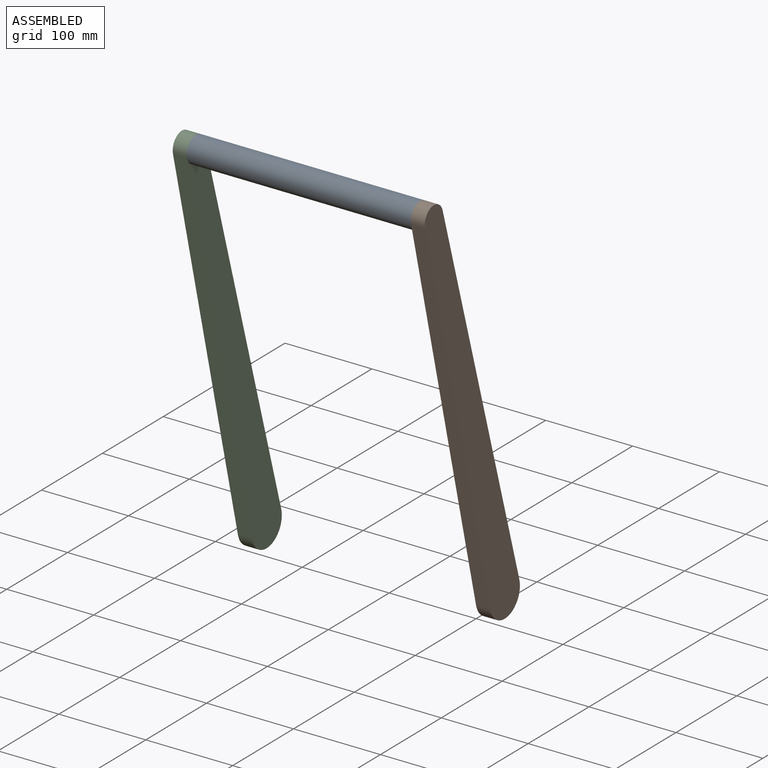
[diagram: assembled view]
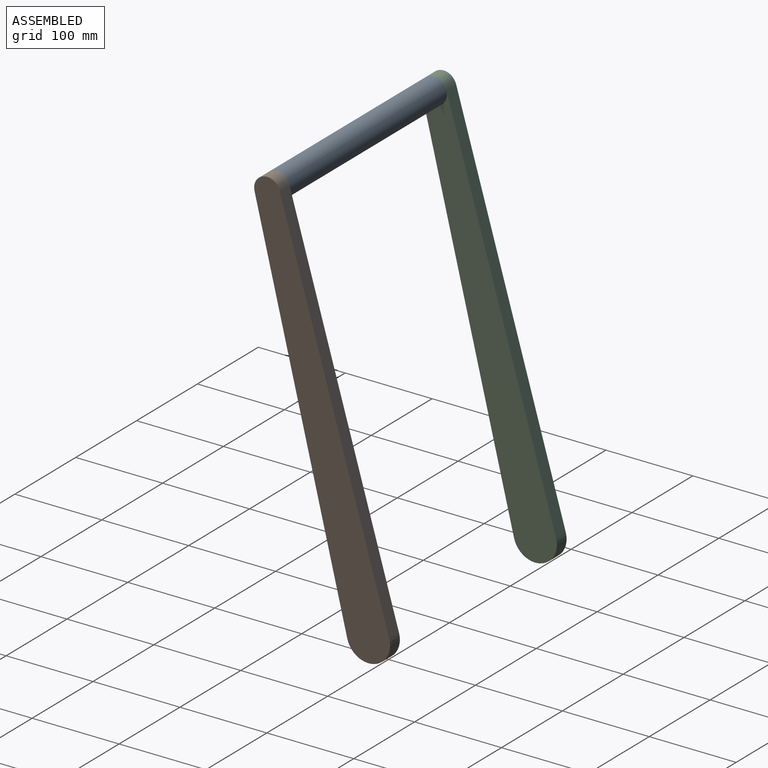
[diagram: assembled view, second angle]
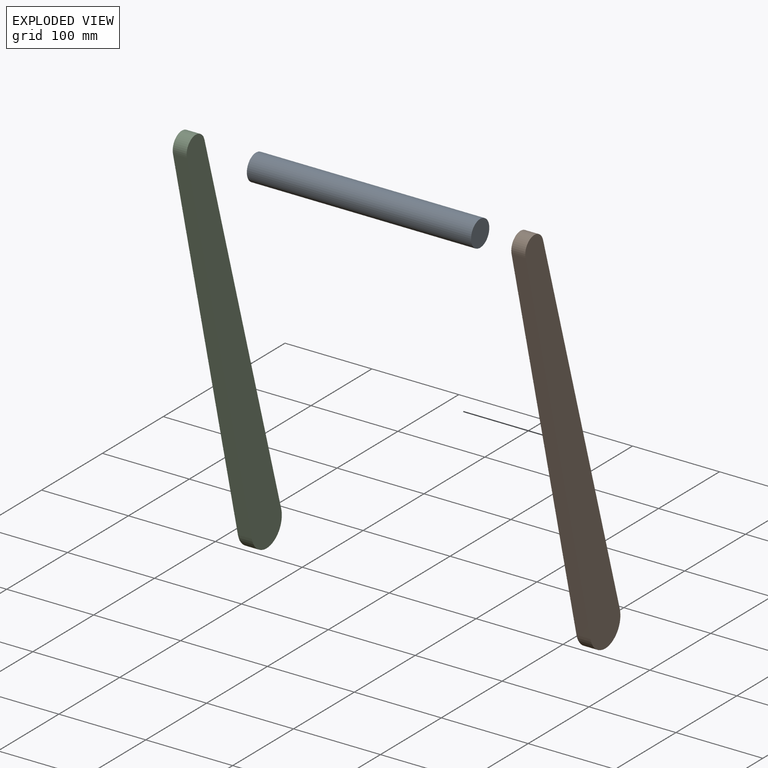
[diagram: exploded view]
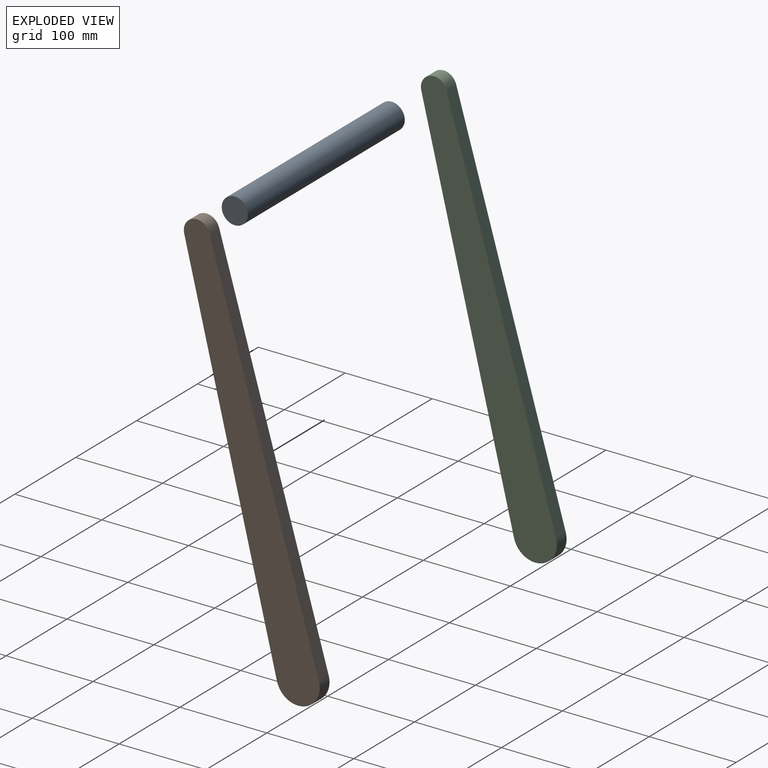
[diagram: exploded view, second angle]
ASSEMBLY  parts=3 mates=2
PART A: 3 faces, bbox 258x30x30 mm
  f0: cylinder r=15mm len=258mm, axis (-1,0,0), area 24315.9mm2, adj f1,f2
  f1: plane 30x30mm, normal (1,0,0), area 706.9mm2, adj f0
  f2: plane 30x30mm, normal (-1,0,0), area 706.9mm2, adj f0
PART B: 6 faces, bbox 16x156.5x474.7 mm
  f0: plane 437.04x106.75mm, normal (0,-0.97,-0.24), area 7198.2mm2, adj f1,f3,f4,f5
  f1: cylinder r=25mm len=49.29mm, axis (-1,0,0), area 1274.4mm2, adj f0,f2,f4,f5
  f2: plane 431.86x126.07mm, normal (0,0.96,0.28), area 7198.2mm2, adj f1,f3,f4,f5
  f3: cylinder r=15mm len=29.4mm, axis (-1,0,0), area 743.3mm2, adj f0,f2,f4,f5
  f4: plane 474.67x156.47mm, normal (1,0,0), area 19339.6mm2, adj f0,f1,f2,f3
  f5: plane 474.67x156.47mm, normal (-1,0,0), area 19339.6mm2, adj f0,f1,f2,f3
PART C: same geometry as B
PLACE A t=(-12,-116.47,434.67)mm
PLACE B t=(117,0,0)mm
PLACE C t=(-157,0,0)mm
MATE fastened A.f0 <-> B.f3  axis (1,0,0) through (117,-116.47,434.67)mm
MATE fastened A.f0 <-> C.f3  axis (-1,0,0) through (-141,-116.47,434.67)mm
